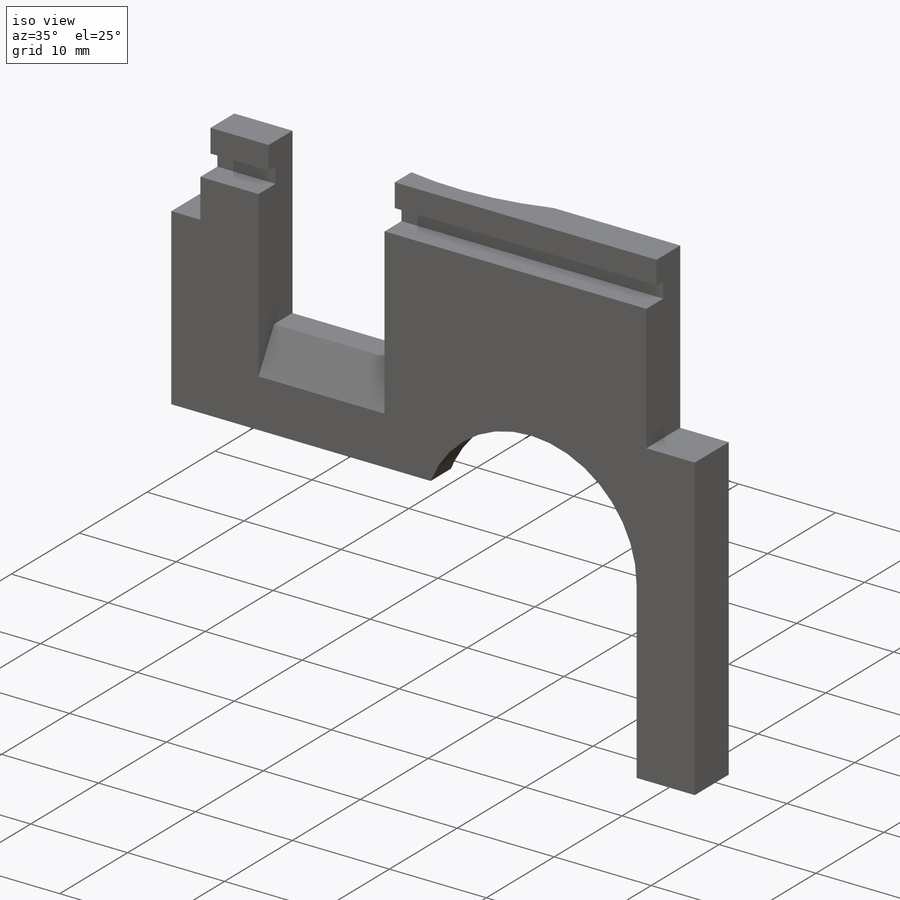
[diagram: iso view]
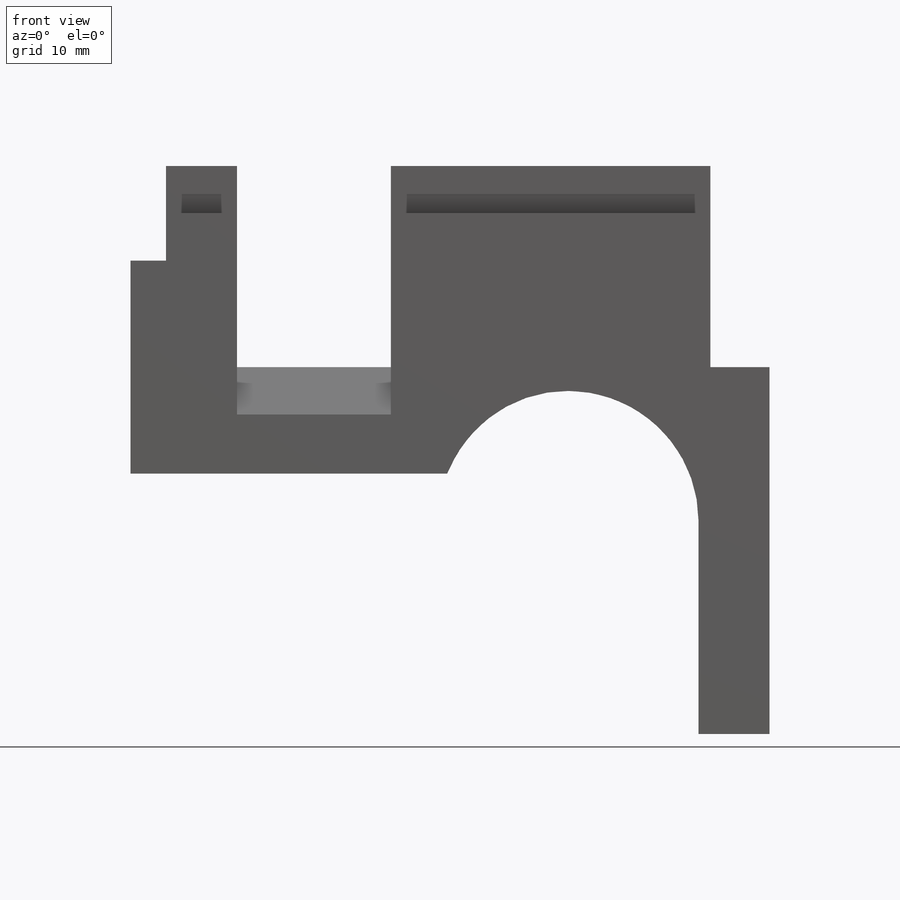
[diagram: front view]
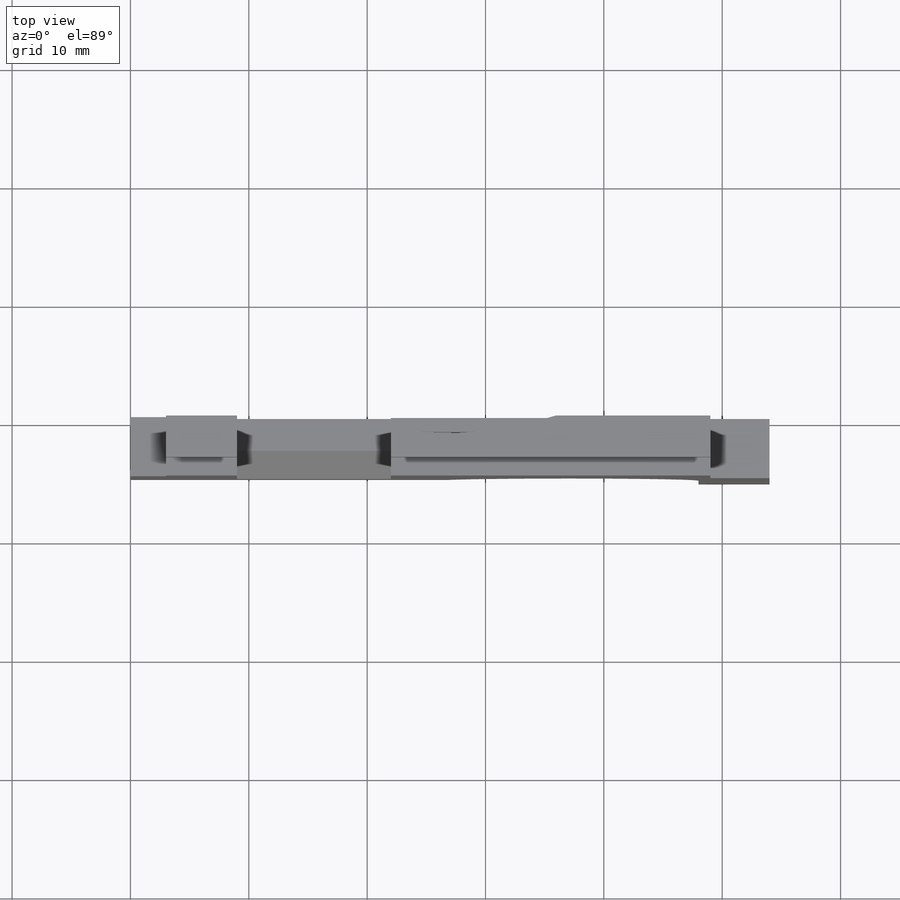
[diagram: top view]
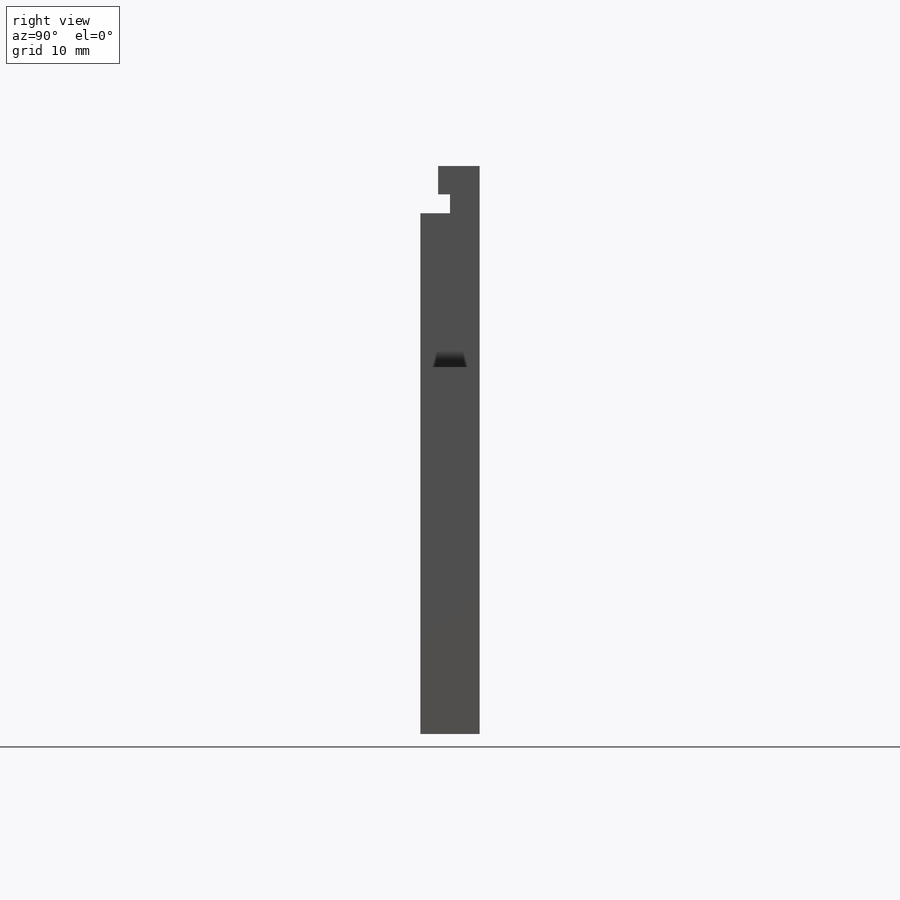
[diagram: right view]
SOLIDWORKS PART (.sldprt)
format: sldprt  version: not decoded by parser v0  size: 357,888 bytes
history: native  units: mm
features: sketch x10, cut_extrude x6, plane x4, thread x3, chamfer x2, material x1, extrude x1, hole x1, cut_revolve x1 (+13 scaffold rows collapsed)
feature tree (42):
  scaffold x13  (default folders/planes/origin — collapsed)
  material  "Материал <не указан>"
  plane  "Спереди"
  plane  "Сверху"
  plane  "Справа"
  sketch  "Эскиз1"  dims[c1.D3=3.0mm c1.D4=3.0mm c1.D5=3.0mm c1.D6=3.0mm c2.D3=4.0mm c2.D1=54.0mm c2.D2=48.0mm c2.D4=5.0mm c2.D5=1.0mm c2.D6=5.0mm c3.D4=8.0mm c3.D5=25.0mm]
  extrude  "Бобышка-Вытянуть1"  Depth=5mm
  sketch  "Эскиз3"  dims[D1=40.0mm D2=31.0mm D3=3.0mm D4=6.0mm D5=13.0mm D6=49.0mm D7=31.0mm]
  cut_extrude  "Вырез-Вытянуть1"  [1 undecoded]
  sketch  "Эскиз4"  dims[c1.D1=1.6mm c1.D2=44.5mm c1.D3=2.5mm c1.D4=1.5mm c2.D1=1.6mm]
  cut_extrude  "Вырез-Вытянуть2"  [1 undecoded]
  sketch  "Эскиз5"  dims[c1.D3=11.0mm c1.D1=11.0mm c1.D2=11.0mm c2.D1=22.0mm c2.D2=7.0mm c2.D3=18.0mm c3.D2=37.0mm c3.D4=18.0mm]
  cut_extrude  "Вырез-Вытянуть3"  [1 undecoded]
  sketch  "Эскиз6"  dims[c1.D1=55.0mm c1.D2=45.0mm c1.D3=45.0mm c2.D2=26.0mm c2.D3=27.0mm]
  cut_extrude  "Вырез-Вытянуть4"  Depth=12mm
  hole  "Отверстие обработанное метчиком M31"  [1 undecoded]
  sketch  "Трехмерный эскиз1"  dims[D1=51.0mm D2=22.0mm D3=34.0mm D4=2.5mm D5=2.5mm D6=2.5mm]
  thread  "Отверстие резьбы1"  Diameter=7.5mm  [1 undecoded]
  thread  "Отверстие резьбы2"  Diameter=7.5mm  [1 undecoded]
  thread  "Отверстие резьбы3"  Diameter=6.438751mm  [1 undecoded]
  sketch  "Эскиз7"  dims[hole-wizard template sketch: 39 standard entries collapsed; hole parameters kept: c13.Диаметр сверла=2.5mm c13.Глубина сверла=7.5mm c13.Диаметр передней зенковки=3.2mm c13.D4=~33.297463mm c13.Угол передней зенковки=110.0deg c14.D5=~14.816244mm c14.Угол заточки сверла=118.0deg]
  chamfer  "Фаска2"  Distance=4mm Angle=30deg
  sketch  "Эскиз8"  dims[c1.D1=~2.369902mm c2.D1=25.0deg c2.D2=0.5mm]
  cut_extrude  "Вырез-Вытянуть5"  Depth=15mm
  sketch  "Эскиз9"  dims[c1.D1=20.0mm c1.D2=18.0mm c1.D3=22.0mm c2.D2=5.0mm c2.D3=18.0mm]
  cut_extrude  "Вырез-Вытянуть6"  [1 undecoded]
  chamfer  "Фаска3"  Distance=2mm Angle=45deg
  plane  "Плоскость1"
  sketch  "Эскиз10"  dims[c1.D1=7.0mm c1.D2=2.0mm c1.D3=~4.505401mm c2.D3=60.0deg c2.D4=5.0mm]
  cut_revolve  "Вырез-Повернуть1"  Angle=360deg
decode coverage: 19 of 24 modeling features carry decoded parameters
note: ~ marks probable driven/reference dimensions
note: 8 parameter values undecoded
summary: no parameter record found for 5 features
note: suppression state not decoded; provenance and decode notes live in map.json
